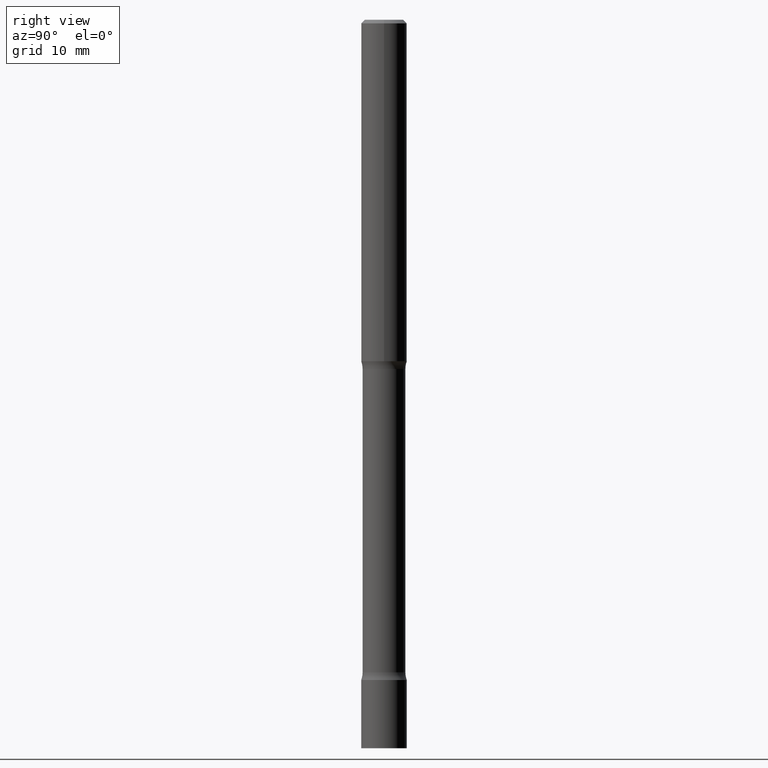
[diagram: clean part render]
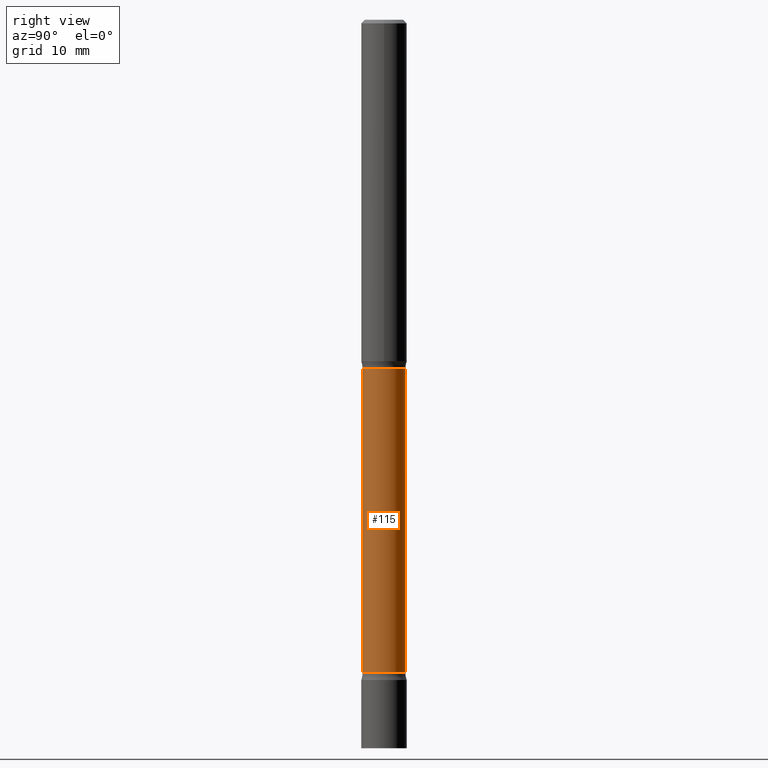
[diagram: same view with one face highlighted and labeled with its STEP entity id]
A machine part, right view. The second image highlights one B-rep face of the part: STEP entity #115.
In plain terms, the highlighted cylindrical surface (edge-blend (fillet) strip) has radius 2.9845 mm, axis along (0, -0, -1).
Its self-contained STEP definition (entity closure, byte-faithful):
#14 = EDGE_LOOP ( 'NONE', ( #364, #303, #193, #58 ) ) ;
#19 = CARTESIAN_POINT ( 'NONE',  ( 8.779137382850924251E-29, -1.248107677970883248E-14, -3.582353194726919821 ) ) ;
#43 = CARTESIAN_POINT ( 'NONE',  ( -8.061085147380546628E-16, -0.1175000000000136074, -3.999999999999999556 ) ) ;
#58 = ORIENTED_EDGE ( 'NONE', *, *, #325, .F. ) ;
#59 = CARTESIAN_POINT ( 'NONE',  ( 9.513849917074038221E-29, -1.434975285100415564E-14, -4.000000000000000000 ) ) ;
#84 = DIRECTION ( 'NONE',  ( 6.982962677686266711E-15, 1.000000000000000000, -4.649954031768988059E-15 ) ) ;
#92 = VERTEX_POINT ( 'NONE', #93 ) ;
#93 = CARTESIAN_POINT ( 'NONE',  ( 8.204981146282264856E-16, 0.1174999999999878642, -3.582353194726920265 ) ) ;
#99 = EDGE_CURVE ( 'NONE', #92, #270, #168, .T. ) ;
#115 = ADVANCED_FACE ( 'NONE', ( #448 ), #408, .T. ) ;
#125 = LINE ( 'NONE', #269, #507 ) ;
#155 = AXIS2_PLACEMENT_3D ( 'NONE', #19, #317, #402 ) ;
#156 = DIRECTION ( 'NONE',  ( 1.759171924570855496E-29, -4.474297534907476675E-15, -1.000000000000000000 ) ) ;
#168 = CIRCLE ( 'NONE', #155, 0.1175000000000003542 ) ;
#187 = VECTOR ( 'NONE', #437, 39.37007874015748143 ) ;
#193 = ORIENTED_EDGE ( 'NONE', *, *, #99, .F. ) ;
#203 = DIRECTION ( 'NONE',  ( 1.759171924570855496E-29, -4.474297534907476675E-15, -1.000000000000000000 ) ) ;
#207 = AXIS2_PLACEMENT_3D ( 'NONE', #59, #203, #84 ) ;
#219 = DIRECTION ( 'NONE',  ( 6.982962677686265922E-15, 1.000000000000000000, -4.649954031769031446E-15 ) ) ;
#261 = VERTEX_POINT ( 'NONE', #502 ) ;
#269 = CARTESIAN_POINT ( 'NONE',  ( 8.204981146282261897E-16, 0.1174999999999849221, -4.000000000000000888 ) ) ;
#270 = VERTEX_POINT ( 'NONE', #431 ) ;
#303 = ORIENTED_EDGE ( 'NONE', *, *, #443, .T. ) ;
#317 = DIRECTION ( 'NONE',  ( 1.759171924570855496E-29, -4.474297534907476675E-15, -1.000000000000000000 ) ) ;
#325 = EDGE_CURVE ( 'NONE', #261, #92, #125, .T. ) ;
#362 = VERTEX_POINT ( 'NONE', #483 ) ;
#364 = ORIENTED_EDGE ( 'NONE', *, *, #375, .T. ) ;
#375 = EDGE_CURVE ( 'NONE', #261, #362, #470, .T. ) ;
#385 = AXIS2_PLACEMENT_3D ( 'NONE', #419, #156, #219 ) ;
#392 = LINE ( 'NONE', #43, #187 ) ;
#402 = DIRECTION ( 'NONE',  ( 6.982962677686265133E-15, 1.000000000000000000, -4.649954031768944672E-15 ) ) ;
#408 = CYLINDRICAL_SURFACE ( 'NONE', #207, 0.1174999999999992578 ) ;
#419 = CARTESIAN_POINT ( 'NONE',  ( 5.850632639870013591E-29, -5.032685085030794996E-15, -1.917646805273080624 ) ) ;
#431 = CARTESIAN_POINT ( 'NONE',  ( -8.318353822297121609E-16, -0.1175000000000128303, -3.582353194726918932 ) ) ;
#437 = DIRECTION ( 'NONE',  ( 1.759171924570855496E-29, -4.474297534907476675E-15, -1.000000000000000000 ) ) ;
#443 = EDGE_CURVE ( 'NONE', #362, #270, #392, .T. ) ;
#444 = DIRECTION ( 'NONE',  ( 1.759171924570855496E-29, -4.474297534907476675E-15, -1.000000000000000000 ) ) ;
#448 = FACE_OUTER_BOUND ( 'NONE', #14, .T. ) ;
#470 = CIRCLE ( 'NONE', #385, 0.1174999999999981615 ) ;
#483 = CARTESIAN_POINT ( 'NONE',  ( -8.318353822297277409E-16, -0.1175000000000032269, -1.917646805273080179 ) ) ;
#502 = CARTESIAN_POINT ( 'NONE',  ( 8.204981146281819149E-16, 0.1174999999999931238, -1.917646805273081290 ) ) ;
#507 = VECTOR ( 'NONE', #444, 39.37007874015748143 ) ;